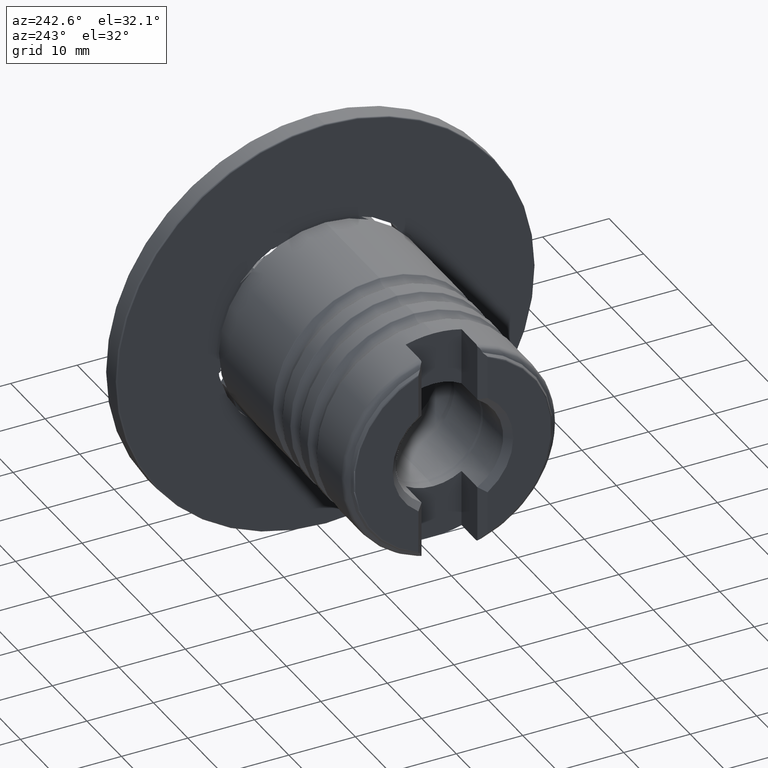
[diagram: clean part render]
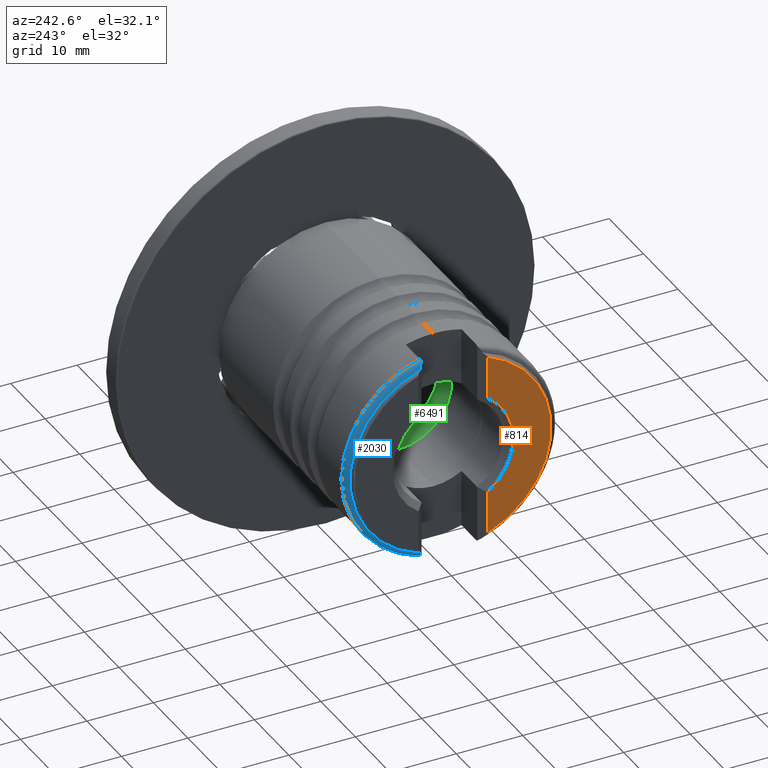
[diagram: same view with three faces highlighted in distinct colors, each labeled with its STEP entity id]
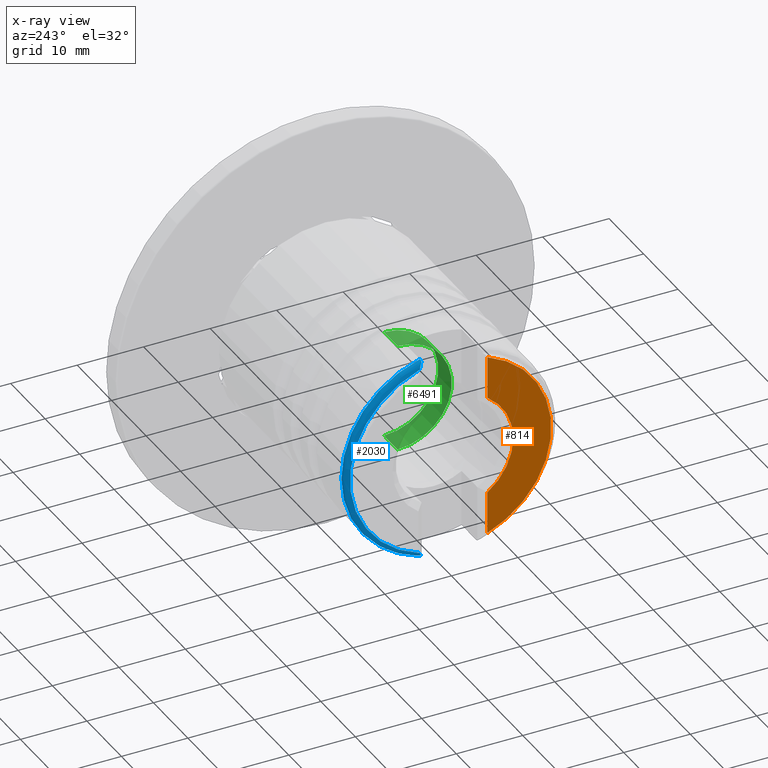
[diagram: x-ray of the same camera — body ghosted, the three highlighted faces saturated]
A machine part, auxiliary view with three faces highlighted in distinct colors.
The next image is the same camera in x-ray (body ghosted, the three faces saturated) — at least one of them is partly hidden behind the body in this view.
Their STEP definitions:

[orange] entity #814 — the highlighted planar face has unit normal (-1, 0, 0).
#805 = VERTEX_POINT ( 'NONE', #1451 ) ;
#814 = ADVANCED_FACE ( 'NONE', ( #2402 ), #3460, .T. ) ;
#822 = CARTESIAN_POINT ( 'NONE',  ( -39.72493930000000972, 0.0000000000000000000, 0.0000000000000000000 ) ) ;
#1325 = VERTEX_POINT ( 'NONE', #2186 ) ;
#1353 = CARTESIAN_POINT ( 'NONE',  ( -39.72493930000000262, -5.200000000000007283, -25.00000000000000000 ) ) ;
#1451 = CARTESIAN_POINT ( 'NONE',  ( -39.72493930000000262, -5.200000000000007283, 7.437447478806133994 ) ) ;
#1524 = DIRECTION ( 'NONE',  ( -1.000000000000000000, 0.0000000000000000000, 0.0000000000000000000 ) ) ;
#2020 = CARTESIAN_POINT ( 'NONE',  ( -39.72493930000000972, 14.78759070216157312, 0.0000000000000000000 ) ) ;
#2109 = AXIS2_PLACEMENT_3D ( 'NONE', #822, #5563, #2872 ) ;
#2186 = CARTESIAN_POINT ( 'NONE',  ( -39.72493930000000262, -5.200000000000007283, -13.84315133106097484 ) ) ;
#2188 = CIRCLE ( 'NONE', #5719, 9.074999999999997513 ) ;
#2279 = LINE ( 'NONE', #1353, #6700 ) ;
#2302 = EDGE_CURVE ( 'NONE', #2739, #1325, #4962, .T. ) ;
#2375 = DIRECTION ( 'NONE',  ( -0.0000000000000000000, -0.0000000000000000000, 1.000000000000000000 ) ) ;
#2402 = FACE_OUTER_BOUND ( 'NONE', #5841, .T. ) ;
#2446 = VERTEX_POINT ( 'NONE', #2815 ) ;
#2739 = VERTEX_POINT ( 'NONE', #6548 ) ;
#2815 = CARTESIAN_POINT ( 'NONE',  ( -39.72493930000000262, -5.200000000000007283, -7.437447478806133994 ) ) ;
#2867 = EDGE_CURVE ( 'NONE', #805, #2739, #3591, .T. ) ;
#2872 = DIRECTION ( 'NONE',  ( 0.0000000000000000000, 0.0000000000000000000, -1.000000000000000000 ) ) ;
#2948 = EDGE_CURVE ( 'NONE', #1325, #2446, #2279, .T. ) ;
#3001 = ORIENTED_EDGE ( 'NONE', *, *, #2302, .F. ) ;
#3164 = EDGE_CURVE ( 'NONE', #805, #2446, #2188, .T. ) ;
#3359 = AXIS2_PLACEMENT_3D ( 'NONE', #2020, #1524, #3624 ) ;
#3460 = PLANE ( 'NONE',  #3359 ) ;
#3591 = LINE ( 'NONE', #3932, #4395 ) ;
#3624 = DIRECTION ( 'NONE',  ( 0.0000000000000000000, 0.0000000000000000000, 1.000000000000000000 ) ) ;
#3932 = CARTESIAN_POINT ( 'NONE',  ( -39.72493930000000262, -5.200000000000007283, -25.00000000000000000 ) ) ;
#4210 = DIRECTION ( 'NONE',  ( 0.0000000000000000000, 0.0000000000000000000, -1.000000000000000000 ) ) ;
#4395 = VECTOR ( 'NONE', #4966, 1000.000000000000000 ) ;
#4726 = ORIENTED_EDGE ( 'NONE', *, *, #2867, .F. ) ;
#4962 = CIRCLE ( 'NONE', #2109, 14.78759070216157312 ) ;
#4966 = DIRECTION ( 'NONE',  ( -0.0000000000000000000, -0.0000000000000000000, 1.000000000000000000 ) ) ;
#5231 = DIRECTION ( 'NONE',  ( 1.000000000000000000, -0.0000000000000000000, -0.0000000000000000000 ) ) ;
#5563 = DIRECTION ( 'NONE',  ( 1.000000000000000000, -0.0000000000000000000, -0.0000000000000000000 ) ) ;
#5719 = AXIS2_PLACEMENT_3D ( 'NONE', #5844, #5231, #4210 ) ;
#5778 = ORIENTED_EDGE ( 'NONE', *, *, #3164, .T. ) ;
#5841 = EDGE_LOOP ( 'NONE', ( #6240, #3001, #4726, #5778 ) ) ;
#5844 = CARTESIAN_POINT ( 'NONE',  ( -39.72493930000000972, 0.0000000000000000000, 0.0000000000000000000 ) ) ;
#6240 = ORIENTED_EDGE ( 'NONE', *, *, #2948, .F. ) ;
#6548 = CARTESIAN_POINT ( 'NONE',  ( -39.72493930000000262, -5.200000000000007283, 13.84315133106097484 ) ) ;
#6700 = VECTOR ( 'NONE', #2375, 1000.000000000000000 ) ;

[blue] entity #2030 — the highlighted toroidal blend (fillet) surface has major radius 15 mm and minor (blend) radius 1 mm.
#11 = ORIENTED_EDGE ( 'NONE', *, *, #6342, .F. ) ;
#176 = CARTESIAN_POINT ( 'NONE',  ( -38.56857869239101433, 4.199999999999995737, -15.38001247534052318 ) ) ;
#205 = B_SPLINE_CURVE_WITH_KNOTS ( 'NONE', 3,
 ( #1218, #4899, #1743, #5449, #2796, #5923, #2777, #1726 ),
 .UNSPECIFIED., .F., .F.,
 ( 4, 2, 2, 4 ),
 ( 3.475357991906315321E-05, 0.0005826043094616959817, 0.0008565296742330150929, 0.001130455039004334096 ),
 .UNSPECIFIED. ) ;
#307 = TOROIDAL_SURFACE ( 'NONE', #2536, 14.99999999999999289, 1.000000000000000444 ) ;
#333 = CARTESIAN_POINT ( 'NONE',  ( -38.22493930000000972, 4.199999999999995737, 15.43891187875622073 ) ) ;
#380 = CARTESIAN_POINT ( 'NONE',  ( -38.72493930000000262, 4.199999999999995737, 15.30002490565027884 ) ) ;
#419 = CARTESIAN_POINT ( 'NONE',  ( -39.20393930000000182, 4.678999999999995829, 14.46597129084041100 ) ) ;
#602 = VERTEX_POINT ( 'NONE', #5992 ) ;
#750 = DIRECTION ( 'NONE',  ( 0.0000000000000000000, 0.0000000000000000000, -1.000000000000000000 ) ) ;
#764 = AXIS2_PLACEMENT_3D ( 'NONE', #2999, #1470, #5047 ) ;
#859 = ORIENTED_EDGE ( 'NONE', *, *, #2033, .F. ) ;
#967 = EDGE_CURVE ( 'NONE', #602, #4569, #3962, .T. ) ;
#1218 = CARTESIAN_POINT ( 'NONE',  ( -38.72493930000000262, 4.199999999999995737, 15.30002490565027884 ) ) ;
#1315 = CARTESIAN_POINT ( 'NONE',  ( -38.22493930000000972, 0.0000000000000000000, 0.0000000000000000000 ) ) ;
#1470 = DIRECTION ( 'NONE',  ( 1.000000000000000000, -0.0000000000000000000, -0.0000000000000000000 ) ) ;
#1502 = CARTESIAN_POINT ( 'NONE',  ( -38.22493930000000972, 4.199999999999995737, 15.43891187875622073 ) ) ;
#1578 = ORIENTED_EDGE ( 'NONE', *, *, #4556, .F. ) ;
#1726 = CARTESIAN_POINT ( 'NONE',  ( -39.20393930000000182, 4.678999999999995829, 14.46597129084041100 ) ) ;
#1743 = CARTESIAN_POINT ( 'NONE',  ( -38.93606020381686506, 4.411120903816861727, 15.08528515629879152 ) ) ;
#1787 = B_SPLINE_CURVE_WITH_KNOTS ( 'NONE', 3,
 ( #1502, #5646, #1956, #6675, #2501, #4038 ),
 .UNSPECIFIED., .F., .F.,
 ( 4, 2, 4 ),
 ( 0.003470009485619661698, 0.003731672123578991772, 0.003993334761538321412 ),
 .UNSPECIFIED. ) ;
#1841 = DIRECTION ( 'NONE',  ( 1.000000000000000000, -0.0000000000000000000, -0.0000000000000000000 ) ) ;
#1912 = CARTESIAN_POINT ( 'NONE',  ( -39.17065591988508544, 4.645716619885077669, -14.64472691721797482 ) ) ;
#1956 = CARTESIAN_POINT ( 'NONE',  ( -38.39912103112262542, 4.199999999999995737, 15.42715292119592796 ) ) ;
#1987 = VERTEX_POINT ( 'NONE', #333 ) ;
#2030 = ADVANCED_FACE ( 'NONE', ( #5799 ), #307, .T. ) ;
#2033 = EDGE_CURVE ( 'NONE', #3315, #1987, #6695, .T. ) ;
#2335 = CARTESIAN_POINT ( 'NONE',  ( -38.65031557593908929, 4.199999999999995737, -15.34470275904413583 ) ) ;
#2436 = EDGE_CURVE ( 'NONE', #4655, #3315, #4703, .T. ) ;
#2501 = CARTESIAN_POINT ( 'NONE',  ( -38.64973518597129498, 4.199999999999995737, 15.34505024341604162 ) ) ;
#2535 = ORIENTED_EDGE ( 'NONE', *, *, #967, .T. ) ;
#2536 = AXIS2_PLACEMENT_3D ( 'NONE', #3900, #3921, #750 ) ;
#2627 = VERTEX_POINT ( 'NONE', #380 ) ;
#2684 = EDGE_LOOP ( 'NONE', ( #11, #2535, #2868, #1578, #859, #4246 ) ) ;
#2777 = CARTESIAN_POINT ( 'NONE',  ( -39.18745765104170431, 4.662518351041697429, 14.55448956852447573 ) ) ;
#2796 = CARTESIAN_POINT ( 'NONE',  ( -39.09905897889844084, 4.574119678898423302, 14.80074352426423445 ) ) ;
#2868 = ORIENTED_EDGE ( 'NONE', *, *, #3907, .F. ) ;
#2999 = CARTESIAN_POINT ( 'NONE',  ( -39.20393930000000182, 0.0000000000000000000, 0.0000000000000000000 ) ) ;
#3246 = CARTESIAN_POINT ( 'NONE',  ( -38.22493930000000972, 4.199999999999995737, -15.43891187875622073 ) ) ;
#3315 = VERTEX_POINT ( 'NONE', #3246 ) ;
#3443 = DIRECTION ( 'NONE',  ( 0.0000000000000000000, 0.0000000000000000000, -1.000000000000000000 ) ) ;
#3451 = CARTESIAN_POINT ( 'NONE',  ( -38.83570378989718108, 4.310764489897183083, -15.20330338182812113 ) ) ;
#3473 = CARTESIAN_POINT ( 'NONE',  ( -39.20393930000000182, 4.678999999999995829, -14.46597129084041100 ) ) ;
#3695 = CARTESIAN_POINT ( 'NONE',  ( -38.72493930000000262, 4.199999999999995737, -15.30002490565074602 ) ) ;
#3900 = CARTESIAN_POINT ( 'NONE',  ( -38.22493930000000972, 0.0000000000000000000, 0.0000000000000000000 ) ) ;
#3907 = EDGE_CURVE ( 'NONE', #2627, #4569, #205, .T. ) ;
#3921 = DIRECTION ( 'NONE',  ( 1.000000000000000000, -0.0000000000000000000, -0.0000000000000000000 ) ) ;
#3962 = CIRCLE ( 'NONE', #764, 15.20386024624729870 ) ;
#4038 = CARTESIAN_POINT ( 'NONE',  ( -38.72493930000000262, 4.199999999999995737, 15.30002490565027884 ) ) ;
#4246 = ORIENTED_EDGE ( 'NONE', *, *, #2436, .F. ) ;
#4556 = EDGE_CURVE ( 'NONE', #1987, #2627, #1787, .T. ) ;
#4569 = VERTEX_POINT ( 'NONE', #419 ) ;
#4655 = VERTEX_POINT ( 'NONE', #3695 ) ;
#4703 = B_SPLINE_CURVE_WITH_KNOTS ( 'NONE', 3,
 ( #5989, #2335, #176, #5496, #5419, #5970 ),
 .UNSPECIFIED., .F., .F.,
 ( 4, 2, 4 ),
 ( 0.006061008133075924086, 0.006321778468870529327, 0.006582548804665134569 ),
 .UNSPECIFIED. ) ;
#4899 = CARTESIAN_POINT ( 'NONE',  ( -38.83559447543896681, 4.310655175438959041, 15.20339883715845097 ) ) ;
#5015 = CARTESIAN_POINT ( 'NONE',  ( -39.10320883993145458, 4.578269539931430820, -14.80628112353994297 ) ) ;
#5047 = DIRECTION ( 'NONE',  ( 0.0000000000000000000, 0.0000000000000000000, -1.000000000000000000 ) ) ;
#5419 = CARTESIAN_POINT ( 'NONE',  ( -38.31191733423180068, 4.199999999999995737, -15.43891187875621718 ) ) ;
#5449 = CARTESIAN_POINT ( 'NONE',  ( -39.06183981735085808, 4.536900517350859197, 14.87533447504148576 ) ) ;
#5496 = CARTESIAN_POINT ( 'NONE',  ( -38.39948929155413282, 4.199999999999995737, -15.42702747878960956 ) ) ;
#5584 = CARTESIAN_POINT ( 'NONE',  ( -38.93661967693085302, 4.411680376930841696, -15.08435167934380061 ) ) ;
#5646 = CARTESIAN_POINT ( 'NONE',  ( -38.31267106318734506, 4.199999999999995737, 15.43891187875622784 ) ) ;
#5799 = FACE_OUTER_BOUND ( 'NONE', #2684, .T. ) ;
#5923 = CARTESIAN_POINT ( 'NONE',  ( -39.16198405270060334, 4.637044752700604455, 14.64029291792910747 ) ) ;
#5970 = CARTESIAN_POINT ( 'NONE',  ( -38.22493930000000972, 4.199999999999995737, -15.43891187875622073 ) ) ;
#5989 = CARTESIAN_POINT ( 'NONE',  ( -38.72493930000000262, 4.199999999999995737, -15.30002490565074602 ) ) ;
#5992 = CARTESIAN_POINT ( 'NONE',  ( -39.20393930000000182, 4.678999999999995829, -14.46597129084041100 ) ) ;
#6324 = AXIS2_PLACEMENT_3D ( 'NONE', #1315, #1841, #3443 ) ;
#6342 = EDGE_CURVE ( 'NONE', #602, #4655, #6395, .T. ) ;
#6395 = B_SPLINE_CURVE_WITH_KNOTS ( 'NONE', 3,
 ( #3473, #1912, #5015, #5584, #3451, #6527 ),
 .UNSPECIFIED., .F., .F.,
 ( 4, 2, 4 ),
 ( 0.001369464272885101809, 0.001917777298364182603, 0.002466090323843263179 ),
 .UNSPECIFIED. ) ;
#6527 = CARTESIAN_POINT ( 'NONE',  ( -38.72493930000000262, 4.199999999999995737, -15.30002490565074602 ) ) ;
#6675 = CARTESIAN_POINT ( 'NONE',  ( -38.56941801450516039, 4.199999999999995737, 15.37975599124110282 ) ) ;
#6695 = CIRCLE ( 'NONE', #6324, 15.99999999999999289 ) ;

[green] entity #6491 — the highlighted cylindrical surface (partial cylindrical patch) has radius 8.15 mm, axis along (1, 0, 0).
#387 = DIRECTION ( 'NONE',  ( 1.000000000000000000, -0.0000000000000000000, -0.0000000000000000000 ) ) ;
#501 = ORIENTED_EDGE ( 'NONE', *, *, #2911, .F. ) ;
#549 = DIRECTION ( 'NONE',  ( 1.000000000000000000, -0.0000000000000000000, -0.0000000000000000000 ) ) ;
#671 = EDGE_CURVE ( 'NONE', #3304, #840, #4367, .T. ) ;
#840 = VERTEX_POINT ( 'NONE', #934 ) ;
#934 = CARTESIAN_POINT ( 'NONE',  ( -19.72493930000000262, 9.980871413050927985E-16, 8.149999999999998579 ) ) ;
#1795 = CYLINDRICAL_SURFACE ( 'NONE', #3709, 8.149999999999998579 ) ;
#1798 = AXIS2_PLACEMENT_3D ( 'NONE', #4407, #4916, #1801 ) ;
#1801 = DIRECTION ( 'NONE',  ( 0.0000000000000000000, 0.0000000000000000000, -1.000000000000000000 ) ) ;
#1941 = DIRECTION ( 'NONE',  ( 0.0000000000000000000, 0.0000000000000000000, -1.000000000000000000 ) ) ;
#1948 = CIRCLE ( 'NONE', #1798, 8.149999999999998579 ) ;
#2264 = CARTESIAN_POINT ( 'NONE',  ( -23.65763384164235816, 0.0000000000000000000, -8.149999999999998579 ) ) ;
#2566 = CIRCLE ( 'NONE', #4598, 8.149999999999998579 ) ;
#2911 = EDGE_CURVE ( 'NONE', #3304, #6795, #1948, .T. ) ;
#2920 = DIRECTION ( 'NONE',  ( 1.000000000000000000, -0.0000000000000000000, -0.0000000000000000000 ) ) ;
#2921 = DIRECTION ( 'NONE',  ( 1.000000000000000000, -0.0000000000000000000, -0.0000000000000000000 ) ) ;
#3088 = LINE ( 'NONE', #3403, #3327 ) ;
#3304 = VERTEX_POINT ( 'NONE', #5820 ) ;
#3327 = VECTOR ( 'NONE', #2920, 1000.000000000000000 ) ;
#3403 = CARTESIAN_POINT ( 'NONE',  ( 0.0000000000000000000, 0.0000000000000000000, -8.149999999999998579 ) ) ;
#3428 = EDGE_CURVE ( 'NONE', #6795, #4981, #3088, .T. ) ;
#3709 = AXIS2_PLACEMENT_3D ( 'NONE', #5605, #387, #1941 ) ;
#4056 = ORIENTED_EDGE ( 'NONE', *, *, #3428, .F. ) ;
#4178 = DIRECTION ( 'NONE',  ( 0.0000000000000000000, 0.0000000000000000000, -1.000000000000000000 ) ) ;
#4314 = EDGE_LOOP ( 'NONE', ( #501, #5163, #5924, #4056 ) ) ;
#4367 = LINE ( 'NONE', #4526, #5603 ) ;
#4407 = CARTESIAN_POINT ( 'NONE',  ( -23.65763384164235816, 0.0000000000000000000, 0.0000000000000000000 ) ) ;
#4526 = CARTESIAN_POINT ( 'NONE',  ( 0.0000000000000000000, 9.980871413050927985E-16, 8.149999999999998579 ) ) ;
#4598 = AXIS2_PLACEMENT_3D ( 'NONE', #4654, #549, #4178 ) ;
#4629 = EDGE_CURVE ( 'NONE', #840, #4981, #2566, .T. ) ;
#4654 = CARTESIAN_POINT ( 'NONE',  ( -19.72493930000000262, 0.0000000000000000000, 0.0000000000000000000 ) ) ;
#4916 = DIRECTION ( 'NONE',  ( 1.000000000000000000, -0.0000000000000000000, -0.0000000000000000000 ) ) ;
#4981 = VERTEX_POINT ( 'NONE', #6172 ) ;
#5163 = ORIENTED_EDGE ( 'NONE', *, *, #671, .T. ) ;
#5603 = VECTOR ( 'NONE', #2921, 1000.000000000000000 ) ;
#5605 = CARTESIAN_POINT ( 'NONE',  ( 0.0000000000000000000, 0.0000000000000000000, 0.0000000000000000000 ) ) ;
#5820 = CARTESIAN_POINT ( 'NONE',  ( -23.65763384164235816, 9.980871413050927985E-16, 8.149999999999998579 ) ) ;
#5924 = ORIENTED_EDGE ( 'NONE', *, *, #4629, .T. ) ;
#5990 = FACE_OUTER_BOUND ( 'NONE', #4314, .T. ) ;
#6172 = CARTESIAN_POINT ( 'NONE',  ( -19.72493930000000262, 0.0000000000000000000, -8.149999999999998579 ) ) ;
#6491 = ADVANCED_FACE ( 'NONE', ( #5990 ), #1795, .F. ) ;
#6795 = VERTEX_POINT ( 'NONE', #2264 ) ;